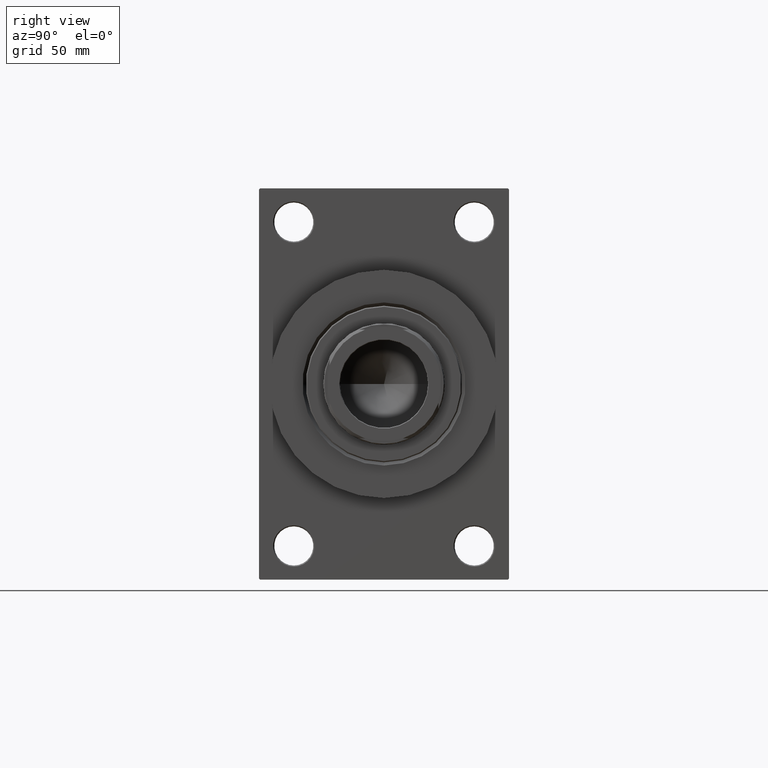
[diagram: clean part render]
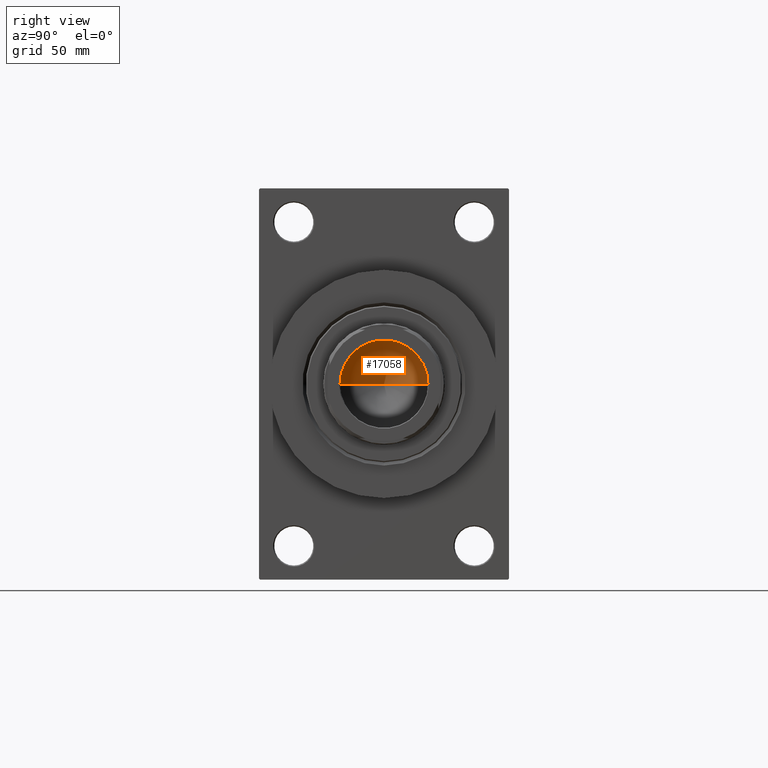
[diagram: same view with one face highlighted and labeled with its STEP entity id]
A machine part, right view. The second image highlights one B-rep face of the part: STEP entity #17058.
In plain terms, the highlighted conical surface has half-angle 59 deg.
Its self-contained STEP definition (entity closure, byte-faithful):
#980 = LINE ( 'NONE', #15725, #39088 ) ;
#1142 = DIRECTION ( 'NONE',  ( 1.000000000000000000, 0.000000000000000000, 0.000000000000000000 ) ) ;
#2263 = CARTESIAN_POINT ( 'NONE',  ( -20.24999999999998934, 2.479909768273389117E-15, 135.0000000000000000 ) ) ;
#2601 = DIRECTION ( 'NONE',  ( -0.8571673007021115565, 1.049727191138617710E-16, 0.5150380749100554878 ) ) ;
#9007 = EDGE_CURVE ( 'NONE', #41442, #22012, #25028, .T. ) ;
#10809 = DIRECTION ( 'NONE',  ( -0.000000000000000000, -0.000000000000000000, 1.000000000000000000 ) ) ;
#12823 = FACE_OUTER_BOUND ( 'NONE', #28873, .T. ) ;
#13017 = ORIENTED_EDGE ( 'NONE', *, *, #9007, .T. ) ;
#15032 = ORIENTED_EDGE ( 'NONE', *, *, #32779, .T. ) ;
#15431 = EDGE_CURVE ( 'NONE', #28476, #22012, #980, .T. ) ;
#15725 = CARTESIAN_POINT ( 'NONE',  ( 20.24999999999998934, 0.000000000000000000, 135.0000000000000000 ) ) ;
#15957 = VECTOR ( 'NONE', #2601, 1000.000000000000000 ) ;
#17058 = ADVANCED_FACE ( 'NONE', ( #12823 ), #18374, .F. ) ;
#17478 = CARTESIAN_POINT ( 'NONE',  ( 20.24999999999998934, 0.000000000000000000, 135.0000000000000000 ) ) ;
#18374 = CONICAL_SURFACE ( 'NONE', #33752, 20.24999999999998934, 1.029744258676652979 ) ;
#19272 = DIRECTION ( 'NONE',  ( -0.000000000000000000, -0.000000000000000000, 1.000000000000000000 ) ) ;
#22012 = VERTEX_POINT ( 'NONE', #17478 ) ;
#23204 = DIRECTION ( 'NONE',  ( 0.8571673007021115565, 0.000000000000000000, 0.5150380749100554878 ) ) ;
#25028 = CIRCLE ( 'NONE', #31160, 20.24999999999998934 ) ;
#28476 = VERTEX_POINT ( 'NONE', #31532 ) ;
#28873 = EDGE_LOOP ( 'NONE', ( #43032, #15032, #13017 ) ) ;
#28903 = CARTESIAN_POINT ( 'NONE',  ( -20.24999999999998934, 2.479909768273389117E-15, 135.0000000000000000 ) ) ;
#31160 = AXIS2_PLACEMENT_3D ( 'NONE', #41438, #19272, #1142 ) ;
#31532 = CARTESIAN_POINT ( 'NONE',  ( -1.584115414415908206E-14, 0.000000000000000000, 122.8325724646918786 ) ) ;
#31550 = LINE ( 'NONE', #28903, #15957 ) ;
#32753 = CARTESIAN_POINT ( 'NONE',  ( 0.000000000000000000, 0.000000000000000000, 135.0000000000000000 ) ) ;
#32779 = EDGE_CURVE ( 'NONE', #28476, #41442, #31550, .T. ) ;
#33752 = AXIS2_PLACEMENT_3D ( 'NONE', #32753, #10809, #38621 ) ;
#38621 = DIRECTION ( 'NONE',  ( 1.000000000000000000, 0.000000000000000000, 0.000000000000000000 ) ) ;
#39088 = VECTOR ( 'NONE', #23204, 1000.000000000000000 ) ;
#41438 = CARTESIAN_POINT ( 'NONE',  ( 0.000000000000000000, 0.000000000000000000, 135.0000000000000000 ) ) ;
#41442 = VERTEX_POINT ( 'NONE', #2263 ) ;
#43032 = ORIENTED_EDGE ( 'NONE', *, *, #15431, .F. ) ;